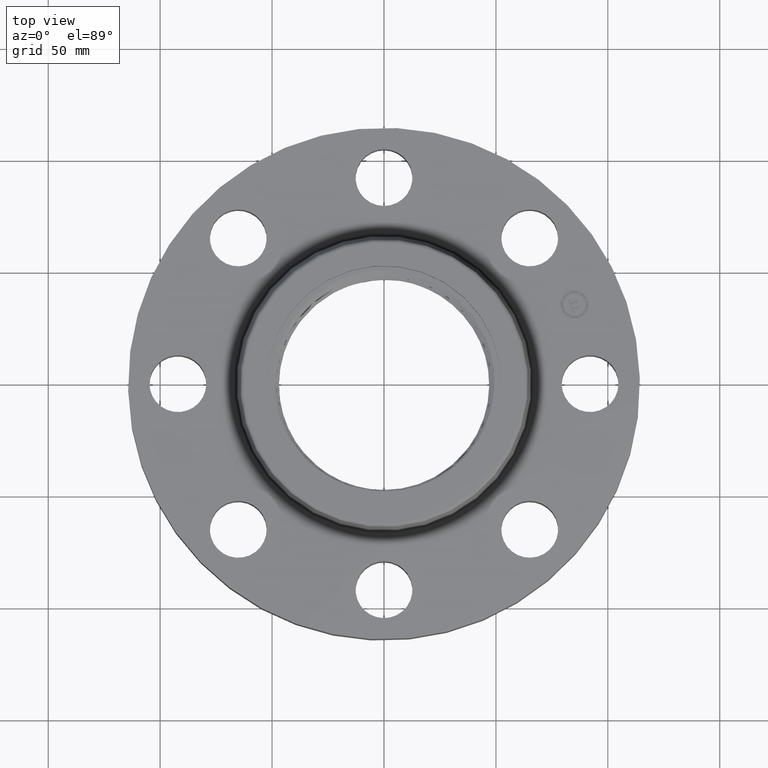
[diagram: clean part render]
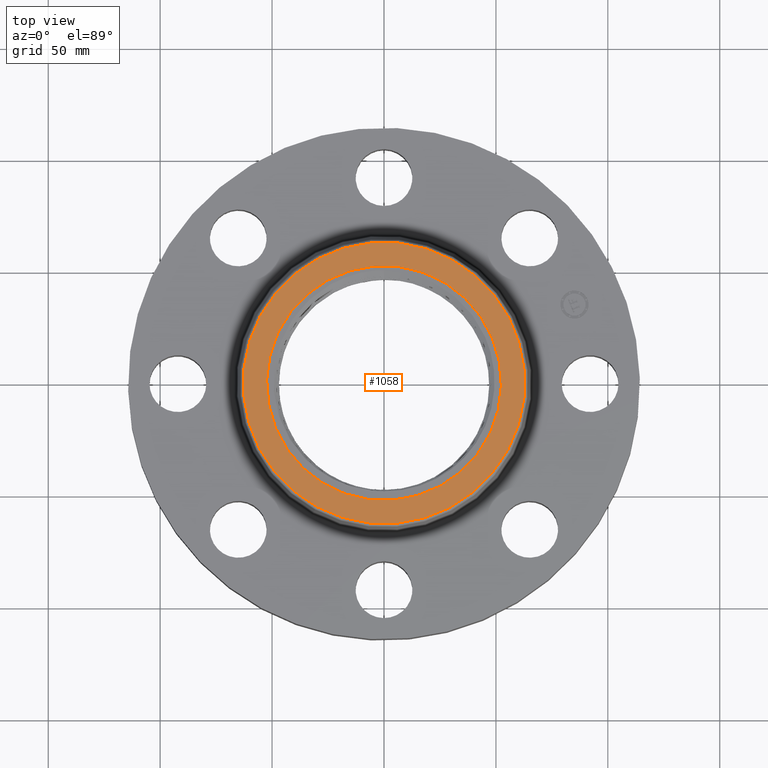
[diagram: same view with one face highlighted and labeled with its STEP entity id]
A machine part, top view. The second image highlights one B-rep face of the part: STEP entity #1058.
In plain terms, the highlighted planar face has unit normal (0, 0, -1).
Its self-contained STEP definition (entity closure, byte-faithful):
#479=AXIS2_PLACEMENT_3D('Circle Axis2P3D',#477,#478,$) ;
#505=AXIS2_PLACEMENT_3D('Circle Axis2P3D',#503,#504,$) ;
#715=AXIS2_PLACEMENT_3D('Circle Axis2P3D',#713,#714,$) ;
#734=AXIS2_PLACEMENT_3D('Circle Axis2P3D',#732,#733,$) ;
#1048=AXIS2_PLACEMENT_3D('Plane Axis2P3D',#1045,#1046,#1047) ;
#477=CARTESIAN_POINT('Axis2P3D Location',(0.,0.,1.94000000001)) ;
#481=CARTESIAN_POINT('Vertex',(-0.990013737222,1.81220799031,1.94000000001)) ;
#483=CARTESIAN_POINT('Vertex',(0.990013737222,-1.81220799031,1.94000000001)) ;
#503=CARTESIAN_POINT('Axis2P3D Location',(0.,0.,1.94000000001)) ;
#710=CARTESIAN_POINT('Vertex',(1.18701492297,2.17281624199,1.94000000001)) ;
#713=CARTESIAN_POINT('Axis2P3D Location',(0.,0.,1.94000000001)) ;
#717=CARTESIAN_POINT('Vertex',(-1.18701492297,-2.17281624199,1.94000000001)) ;
#732=CARTESIAN_POINT('Axis2P3D Location',(0.,0.,1.94000000001)) ;
#1045=CARTESIAN_POINT('Axis2P3D Location',(0.,2.47591091294,1.94000000001)) ;
#478=DIRECTION('Axis2P3D Direction',(0.,0.,0.0393700787402)) ;
#504=DIRECTION('Axis2P3D Direction',(0.,0.,0.0393700787402)) ;
#714=DIRECTION('Axis2P3D Direction',(0.,0.,-0.0393700787402)) ;
#733=DIRECTION('Axis2P3D Direction',(0.,0.,-0.0393700787402)) ;
#1046=DIRECTION('Axis2P3D Direction',(0.,0.,-0.0393700787402)) ;
#1047=DIRECTION('Axis2P3D XDirection',(0.0393700787402,0.,0.)) ;
#1051=ORIENTED_EDGE('',*,*,#719,.F.) ;
#1052=ORIENTED_EDGE('',*,*,#736,.F.) ;
#1055=ORIENTED_EDGE('',*,*,#485,.T.) ;
#1056=ORIENTED_EDGE('',*,*,#507,.T.) ;
#1057=FACE_BOUND('',#1054,.T.) ;
#1058=ADVANCED_FACE('PartBody',(#1053,#1057),#1049,.F.) ;
#480=CIRCLE('generated circle',#479,2.06500000001) ;
#506=CIRCLE('generated circle',#505,2.06500000001) ;
#716=CIRCLE('generated circle',#715,2.47591091294) ;
#735=CIRCLE('generated circle',#734,2.47591091294) ;
#485=EDGE_CURVE('',#482,#484,#480,.F.) ;
#507=EDGE_CURVE('',#484,#482,#506,.F.) ;
#719=EDGE_CURVE('',#711,#718,#716,.T.) ;
#736=EDGE_CURVE('',#718,#711,#735,.T.) ;
#1050=EDGE_LOOP('',(#1051,#1052)) ;
#1054=EDGE_LOOP('',(#1055,#1056)) ;
#1053=FACE_OUTER_BOUND('',#1050,.T.) ;
#1049=PLANE('',#1048) ;
#482=VERTEX_POINT('',#481) ;
#484=VERTEX_POINT('',#483) ;
#711=VERTEX_POINT('',#710) ;
#718=VERTEX_POINT('',#717) ;